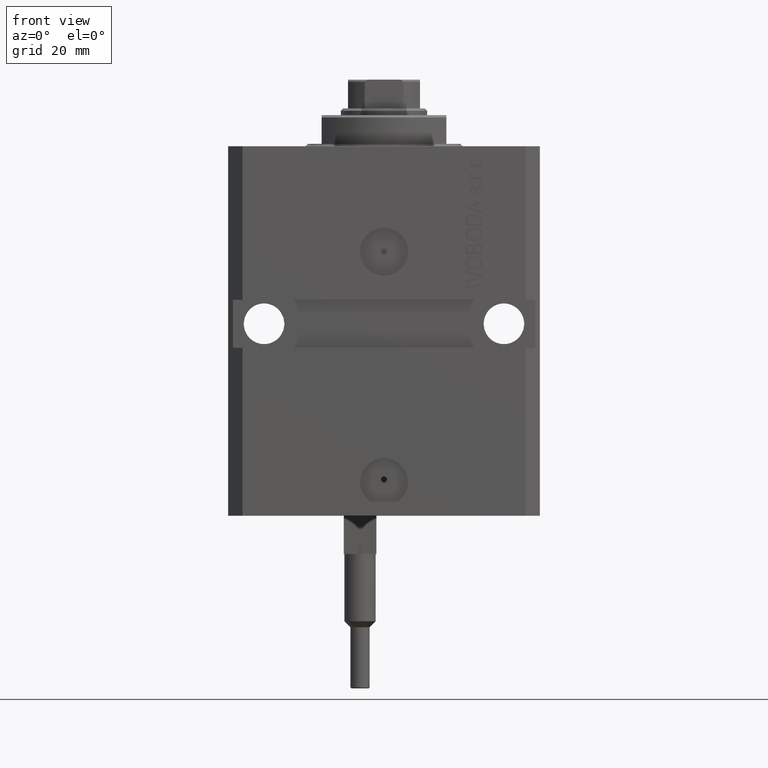
[diagram: clean part render]
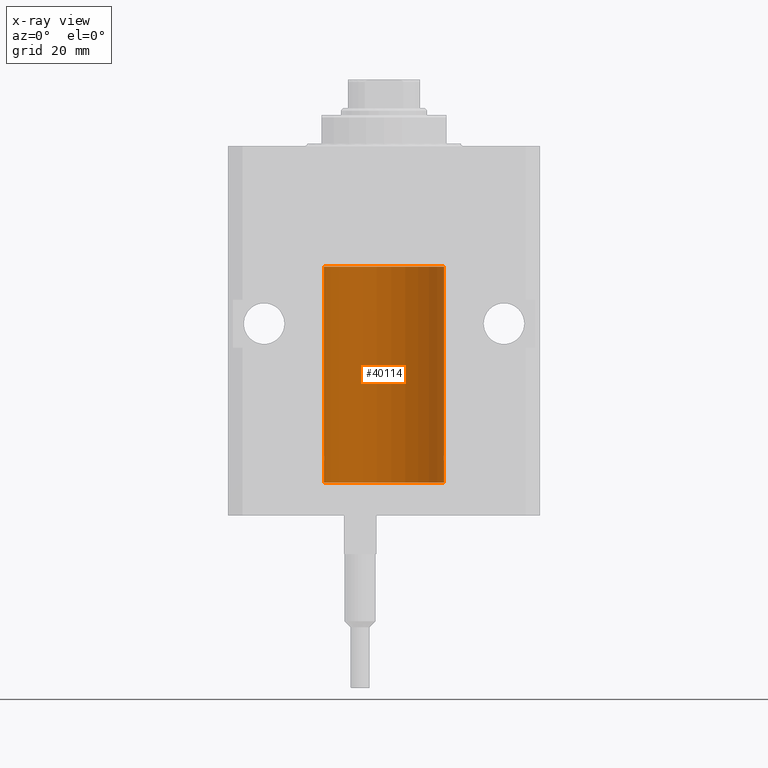
[diagram: x-ray — body ghosted, one internal face saturated and labeled with its STEP entity id]
A machine part, front view, then the same camera in x-ray: the body is ghosted and one INTERNAL B-rep face — a face not visible from any outside direction — is saturated and labeled: STEP entity #40114.
In plain terms, the highlighted cylindrical surface (partial cylindrical patch) has radius 12.5 mm, axis along (0, 0, 1).
Its self-contained STEP definition (entity closure, byte-faithful):
#2197 = EDGE_CURVE ( 'NONE', #31896, #34456, #33787, .T. ) ;
#2361 = CARTESIAN_POINT ( 'NONE',  ( -12.48436813453758454, 0.6249418250771179295, -64.83668996798921569 ) ) ;
#4513 = EDGE_CURVE ( 'NONE', #16043, #48182, #17071, .T. ) ;
#5549 = CARTESIAN_POINT ( 'NONE',  ( 12.50000000000000000, 0.000000000000000000, -70.09999999999999432 ) ) ;
#6056 = CARTESIAN_POINT ( 'NONE',  ( -12.49915784441386890, 0.1636601911727942615, -64.39126818989430490 ) ) ;
#6773 = EDGE_CURVE ( 'NONE', #26400, #37618, #30879, .T. ) ;
#8940 = CARTESIAN_POINT ( 'NONE',  ( -12.50000000000000000, 1.530808498934191127E-15, -70.09999999999999432 ) ) ;
#9096 = CARTESIAN_POINT ( 'NONE',  ( 12.49915742890631876, 0.1636982395582385896, -65.60872397847025184 ) ) ;
#9193 = CARTESIAN_POINT ( 'NONE',  ( 12.50000000000017941, 3.868073689162038701E-13, -64.37499999999640465 ) ) ;
#9329 = CARTESIAN_POINT ( 'NONE',  ( 12.50000000000000000, -1.836039810331332019E-15, -65.62500000000000000 ) ) ;
#9652 = DIRECTION ( 'NONE',  ( -0.000000000000000000, -0.000000000000000000, 1.000000000000000000 ) ) ;
#9730 = CARTESIAN_POINT ( 'NONE',  ( -12.50000000000000000, -1.050566418211748297E-14, -64.37500000000000000 ) ) ;
#11558 = CIRCLE ( 'NONE', #12336, 12.50000000000000000 ) ;
#12168 = ORIENTED_EDGE ( 'NONE', *, *, #4513, .T. ) ;
#12336 = AXIS2_PLACEMENT_3D ( 'NONE', #31695, #35359, #16509 ) ;
#12483 = ORIENTED_EDGE ( 'NONE', *, *, #40721, .F. ) ;
#12932 = CARTESIAN_POINT ( 'NONE',  ( -12.50000000000017941, 3.883381774819353300E-13, -65.62500000000359535 ) ) ;
#13160 = DIRECTION ( 'NONE',  ( -0.000000000000000000, -0.000000000000000000, 1.000000000000000000 ) ) ;
#13641 = CARTESIAN_POINT ( 'NONE',  ( -12.48810268015257741, 0.5573155909661291485, -64.67347410093869087 ) ) ;
#13739 = ORIENTED_EDGE ( 'NONE', *, *, #16665, .T. ) ;
#13923 = FACE_OUTER_BOUND ( 'NONE', #47020, .T. ) ;
#14478 = VERTEX_POINT ( 'NONE', #48247 ) ;
#16043 = VERTEX_POINT ( 'NONE', #29635 ) ;
#16509 = DIRECTION ( 'NONE',  ( 1.000000000000000000, 0.000000000000000000, 0.000000000000000000 ) ) ;
#16548 = CARTESIAN_POINT ( 'NONE',  ( 12.48520578595314845, 0.6087855079133740466, -64.83656717509344958 ) ) ;
#16665 = EDGE_CURVE ( 'NONE', #34456, #37618, #11558, .T. ) ;
#16687 = CARTESIAN_POINT ( 'NONE',  ( 12.48436522214885969, 0.6250000000001505462, -65.16312747540307271 ) ) ;
#17071 = LINE ( 'NONE', #5549, #34754 ) ;
#17196 = CARTESIAN_POINT ( 'NONE',  ( 12.50000000000000000, -1.836039810331332019E-15, -65.62500000000000000 ) ) ;
#17313 = CARTESIAN_POINT ( 'NONE',  ( -12.49011732893843707, 0.5003763274120244242, -65.38348111289288056 ) ) ;
#20229 = CARTESIAN_POINT ( 'NONE',  ( 12.48436522214846711, 0.6250000000078848039, -64.99999999999923261 ) ) ;
#20360 = CARTESIAN_POINT ( 'NONE',  ( 12.49421963472024721, 0.3844519291903572555, -65.49947303647046226 ) ) ;
#20569 = CIRCLE ( 'NONE', #23675, 12.50000000000000000 ) ;
#20610 = ORIENTED_EDGE ( 'NONE', *, *, #48491, .F. ) ;
#20928 = LINE ( 'NONE', #8940, #42985 ) ;
#21233 = CARTESIAN_POINT ( 'NONE',  ( -12.49999999999999289, 0.1631761135151231223, -65.62499999999984368 ) ) ;
#21237 = CARTESIAN_POINT ( 'NONE',  ( 0.000000000000000000, 0.000000000000000000, -70.09999999999999432 ) ) ;
#21595 = CARTESIAN_POINT ( 'NONE',  ( -12.50000000000000000, 1.530808498934191127E-15, -25.10000000000000142 ) ) ;
#21990 = VERTEX_POINT ( 'NONE', #28692 ) ;
#23143 = CARTESIAN_POINT ( 'NONE',  ( 12.50000000000017941, 3.868073689162038701E-13, -64.37499999999640465 ) ) ;
#23266 = DIRECTION ( 'NONE',  ( -0.000000000000000000, -0.000000000000000000, 1.000000000000000000 ) ) ;
#23567 = CARTESIAN_POINT ( 'NONE',  ( 12.50000000000000000, 0.000000000000000000, -25.10000000000000142 ) ) ;
#23675 = AXIS2_PLACEMENT_3D ( 'NONE', #21237, #32512, #39390 ) ;
#24193 = CARTESIAN_POINT ( 'NONE',  ( -12.49625855304193855, 0.3150454781038045660, -64.45402800297485157 ) ) ;
#24919 = CARTESIAN_POINT ( 'NONE',  ( -12.48520330846398174, 0.6088355886774118320, -65.16325431852561678 ) ) ;
#26126 = ORIENTED_EDGE ( 'NONE', *, *, #6773, .F. ) ;
#26400 = VERTEX_POINT ( 'NONE', #43878 ) ;
#27128 = B_SPLINE_CURVE_WITH_KNOTS ( 'NONE', 3,
 ( #9730, #39627, #6056, #24193, #35943, #13641, #2361, #28595, #24919, #31546, #17313, #46510, #21233, #12932 ),
 .UNSPECIFIED., .F., .F.,
 ( 4, 2, 2, 2, 2, 2, 4 ),
 ( 3.452213508042194616E-18, 0.0002442924852390797774, 0.0004885849704781561938, 0.0009771699409563384085, 0.001221462426195450224, 0.001465754911434562040, 0.001954339881912785671 ),
 .UNSPECIFIED. ) ;
#27821 = CARTESIAN_POINT ( 'NONE',  ( 12.49631206032076136, 0.3252904079142934779, -64.44139700214927302 ) ) ;
#27957 = CARTESIAN_POINT ( 'NONE',  ( 12.49625698805481022, 0.3151108292486944906, -65.54593695688173227 ) ) ;
#28304 = B_SPLINE_CURVE_WITH_KNOTS ( 'NONE', 3,
 ( #20229, #45504, #16548, #46454, #31491, #27821, #42781, #9193 ),
 .UNSPECIFIED., .F., .F.,
 ( 4, 2, 2, 4 ),
 ( 0.0009773924225142606621, 0.001221629287363811033, 0.001465866152213361404, 0.001954339881912461711 ),
 .UNSPECIFIED. ) ;
#28595 = CARTESIAN_POINT ( 'NONE',  ( -12.48436376893640087, 0.6250290278979918623, -65.08132082824472775 ) ) ;
#28692 = CARTESIAN_POINT ( 'NONE',  ( -12.50000000000000000, 1.530808498934191127E-15, -70.09999999999999432 ) ) ;
#28754 = CARTESIAN_POINT ( 'NONE',  ( -12.50000000000017941, 3.883381774819353300E-13, -65.62500000000359535 ) ) ;
#29635 = CARTESIAN_POINT ( 'NONE',  ( 12.50000000000000000, 0.000000000000000000, -70.09999999999999432 ) ) ;
#30725 = EDGE_CURVE ( 'NONE', #14478, #31896, #28304, .T. ) ;
#30871 = ORIENTED_EDGE ( 'NONE', *, *, #30725, .T. ) ;
#30879 = LINE ( 'NONE', #36470, #42629 ) ;
#31491 = CARTESIAN_POINT ( 'NONE',  ( 12.49012055744648997, 0.5002956126656082914, -64.61641710202404454 ) ) ;
#31546 = CARTESIAN_POINT ( 'NONE',  ( -12.48809959379011580, 0.5462151254764967545, -65.31461370481615347 ) ) ;
#31695 = CARTESIAN_POINT ( 'NONE',  ( 0.000000000000000000, 0.000000000000000000, -25.10000000000000142 ) ) ;
#31896 = VERTEX_POINT ( 'NONE', #23143 ) ;
#32101 = CARTESIAN_POINT ( 'NONE',  ( 12.49999999999999822, 0.08262306818362624705, -65.62500000000000000 ) ) ;
#32512 = DIRECTION ( 'NONE',  ( 0.000000000000000000, 0.000000000000000000, 1.000000000000000000 ) ) ;
#33007 = ORIENTED_EDGE ( 'NONE', *, *, #47544, .T. ) ;
#33027 = CYLINDRICAL_SURFACE ( 'NONE', #35901, 12.50000000000000000 ) ;
#33787 = LINE ( 'NONE', #38221, #43286 ) ;
#34456 = VERTEX_POINT ( 'NONE', #23567 ) ;
#34754 = VECTOR ( 'NONE', #13160, 1000.000000000000000 ) ;
#35359 = DIRECTION ( 'NONE',  ( 0.000000000000000000, 0.000000000000000000, 1.000000000000000000 ) ) ;
#35901 = AXIS2_PLACEMENT_3D ( 'NONE', #40635, #40873, #36952 ) ;
#35943 = CARTESIAN_POINT ( 'NONE',  ( -12.49422197749724539, 0.3843754434364305972, -64.50047099568097053 ) ) ;
#36470 = CARTESIAN_POINT ( 'NONE',  ( -12.50000000000000000, 1.530808498934191127E-15, -70.09999999999999432 ) ) ;
#36952 = DIRECTION ( 'NONE',  ( 1.000000000000000000, 0.000000000000000000, 0.000000000000000000 ) ) ;
#37618 = VERTEX_POINT ( 'NONE', #21595 ) ;
#38221 = CARTESIAN_POINT ( 'NONE',  ( 12.50000000000000000, 0.000000000000000000, -70.09999999999999432 ) ) ;
#38981 = EDGE_CURVE ( 'NONE', #48182, #14478, #42393, .T. ) ;
#39390 = DIRECTION ( 'NONE',  ( 1.000000000000000000, 0.000000000000000000, 0.000000000000000000 ) ) ;
#39472 = CARTESIAN_POINT ( 'NONE',  ( 12.48809900631782099, 0.5573988467445673001, -65.32640147935475738 ) ) ;
#39627 = CARTESIAN_POINT ( 'NONE',  ( -12.49999999999999645, 0.08260426088728482774, -64.37499999999998579 ) ) ;
#40114 = ADVANCED_FACE ( 'NONE', ( #13923 ), #33027, .F. ) ;
#40635 = CARTESIAN_POINT ( 'NONE',  ( 0.000000000000000000, 0.000000000000000000, -70.09999999999999432 ) ) ;
#40721 = EDGE_CURVE ( 'NONE', #21990, #46779, #20928, .T. ) ;
#40783 = ORIENTED_EDGE ( 'NONE', *, *, #38981, .T. ) ;
#40873 = DIRECTION ( 'NONE',  ( -0.000000000000000000, -0.000000000000000000, 1.000000000000000000 ) ) ;
#41572 = ORIENTED_EDGE ( 'NONE', *, *, #2197, .T. ) ;
#42393 = B_SPLINE_CURVE_WITH_KNOTS ( 'NONE', 3,
 ( #9329, #32101, #9096, #27957, #20360, #39472, #16687, #47066 ),
 .UNSPECIFIED., .F., .F.,
 ( 4, 2, 2, 4 ),
 ( 1.784246692340212412E-18, 0.0002443481056285665750, 0.0004886962112571313068, 0.0009773924225142606621 ),
 .UNSPECIFIED. ) ;
#42629 = VECTOR ( 'NONE', #47741, 1000.000000000000000 ) ;
#42781 = CARTESIAN_POINT ( 'NONE',  ( 12.49999999999999822, 0.1631389616600901760, -64.37500000000022737 ) ) ;
#42985 = VECTOR ( 'NONE', #9652, 1000.000000000000000 ) ;
#43286 = VECTOR ( 'NONE', #23266, 1000.000000000000000 ) ;
#43878 = CARTESIAN_POINT ( 'NONE',  ( -12.50000000000000000, -1.050566418211748297E-14, -64.37500000000000000 ) ) ;
#45504 = CARTESIAN_POINT ( 'NONE',  ( 12.48436522214888100, 0.6249999999996834754, -64.91847339462351840 ) ) ;
#46454 = CARTESIAN_POINT ( 'NONE',  ( 12.48810305280568222, 0.5461368461738485003, -64.68525466142676805 ) ) ;
#46510 = CARTESIAN_POINT ( 'NONE',  ( -12.49631005746706158, 0.3253680783018496059, -65.55856740465392818 ) ) ;
#46779 = VERTEX_POINT ( 'NONE', #28754 ) ;
#47020 = EDGE_LOOP ( 'NONE', ( #12483, #20610, #12168, #40783, #30871, #41572, #13739, #26126, #33007 ) ) ;
#47066 = CARTESIAN_POINT ( 'NONE',  ( 12.48436522214846711, 0.6250000000078848039, -64.99999999999923261 ) ) ;
#47544 = EDGE_CURVE ( 'NONE', #26400, #46779, #27128, .T. ) ;
#47741 = DIRECTION ( 'NONE',  ( -0.000000000000000000, -0.000000000000000000, 1.000000000000000000 ) ) ;
#48182 = VERTEX_POINT ( 'NONE', #17196 ) ;
#48247 = CARTESIAN_POINT ( 'NONE',  ( 12.48436522214846711, 0.6250000000078848039, -64.99999999999923261 ) ) ;
#48491 = EDGE_CURVE ( 'NONE', #16043, #21990, #20569, .T. ) ;